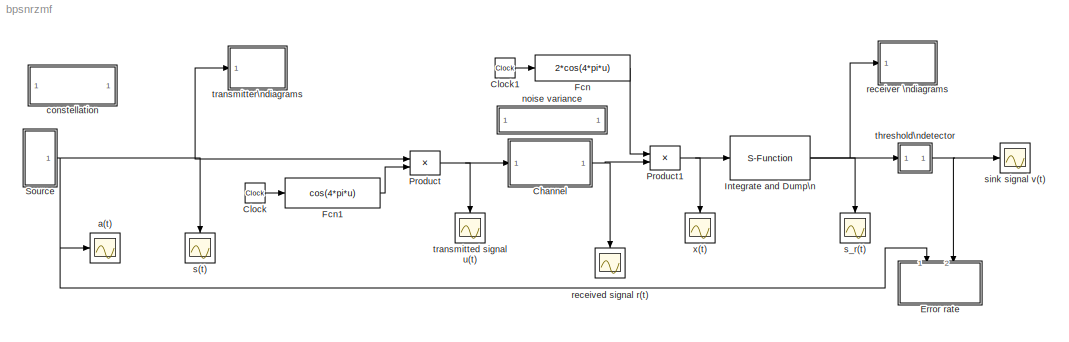
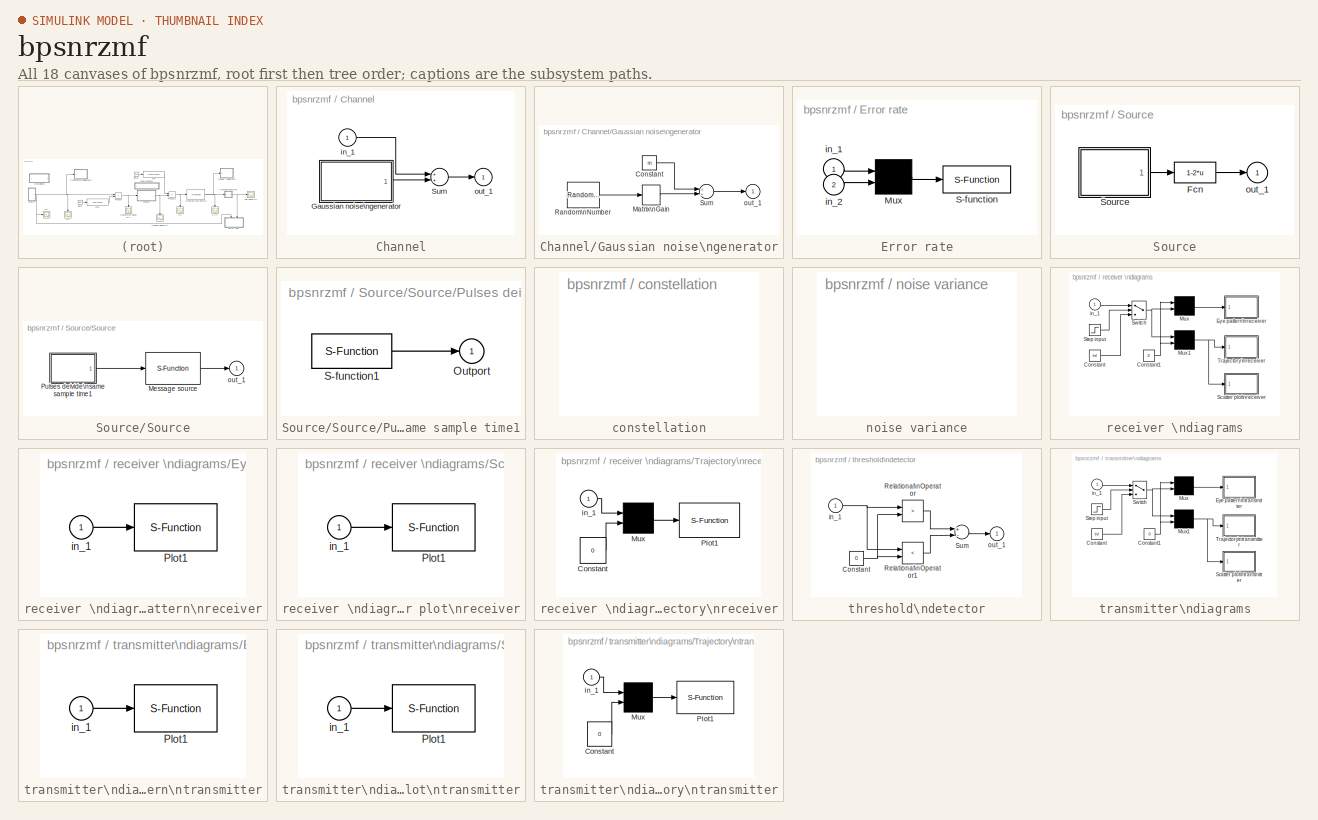
[diagram: thumbnail index - all 18 canvases of the model, root first then tree order]
MODEL bpsnrzmf
KIND model
CONFIG AbsTol = 1e-6
CONFIG FixedStep = auto
CONFIG MaxStep = .01
CONFIG MinStep = 0.000001
CONFIG RelTol = 1e-6
CONFIG Solver = ode45
CONFIG SolverMode = Auto
CONFIG StartTime = 0.0
CONFIG StopTime = 999
BLOCK [SubSystem] Channel
  MaskCallbackString = ||
  MaskDescription = Additive white Gaussian noise channel\nwith fixed mean and variance.
  MaskDisplay = plot(0,0,100,100);\ndisp('AWGN')
  MaskEnableString = on,on,on
  MaskHelp = This block adds white Gaussian noise to the input signal. The mean and the variance can be a scalar or vector with the same length as the input signal.
  MaskIconFrame = on
  MaskIconOpaque = on
  MaskIconRotate = none
  MaskIconUnits = autoscale
  MaskInitialization = [m,variance,s]=gwnoise(m,variance,s);\n
  MaskPromptString = Mean value:|Variance (std^2):|Initial Seed:
  MaskStyleString = edit,edit,edit
  MaskToolTipString = on,on,on
  MaskTunableValueString = on,on,on
  MaskType = AWGN channel, fixed parameter
  MaskValueString = 0|0.00010|12345
  MaskVarAliasString = ,,
  MaskVariables = m=@1;variance=@2;s=@3;
  MaskVisibilityString = on,on,on
  Ports = [1, 1]
  ShowPortLabels = off
  TreatAsAtomicUnit = off
BLOCK [SubSystem] Channel/Gaussian noise\ngenerator
  MaskCallbackString = ||
  MaskDescription = Generate Gaussian distributed noise with\ngiven mean and variance value.
  MaskDisplay = plot(0,0,100,100,x,y);disp('Gaussian')
  MaskEnableString = on,on,on
  MaskHelp = When the mean value and seed are vectors, the output of this block is a vector. The length of the vector is the same as the length of the mean value vector or the length of the seed. When the variance entry is a vector, the variance is a diagonal matrix.
  MaskIconFrame = on
  MaskIconOpaque = on
  MaskIconRotate = none
  MaskIconUnits = autoscale
  MaskInitialization = [m,variance,s]=gwnoise(m,variance,s);[x,y]=srcsicon(3);
  MaskPromptString = Mean value:|Variance (vector or matrix):|Initial seed:
  MaskStyleString = edit,edit,edit
  MaskToolTipString = on,on,on
  MaskTunableValueString = on,on,on
  MaskType = Gaussian noise generator
  MaskValueString = m|variance|s
  MaskVarAliasString = ,,
  MaskVariables = m=@1;variance=@2;s=@3;
  MaskVisibilityString = on,on,on
  Ports = [0, 1]
  ShowPortLabels = off
  TreatAsAtomicUnit = off
BLOCK [Constant] Channel/Gaussian noise\ngenerator/Constant
  Value = m
BLOCK [StateSpace] Channel/Gaussian noise\ngenerator/Matrix\nGain
  A = []
  B = []
  C = []
  D = K
  MaskDescription = Matrix Gain.
  MaskDisplay = disp('K')
  MaskEnableString = on
  MaskHelp = Multiplies input vector by entered matrix to produce output vector (y=Au).
  MaskIconFrame = on
  MaskIconOpaque = on
  MaskIconRotate = none
  MaskIconUnits = autoscale
  MaskInitialization = K = @1;
  MaskPromptString = Gain matrix:
  MaskStyleString = edit
  MaskToolTipString = on
  MaskTunableValueString = on
  MaskType = Matrix Gain
  MaskValueString = variance
  MaskVisibilityString = on
BLOCK [RandomNumber] Channel/Gaussian noise\ngenerator/Random\nNumber
  SampleTime = 0
  Seed = s
BLOCK [Sum] Channel/Gaussian noise\ngenerator/Sum
  Ports = [2, 1]
BLOCK [Outport] Channel/Gaussian noise\ngenerator/out_1
BLOCK [Sum] Channel/Sum
  Ports = [2, 1]
BLOCK [Inport] Channel/in_1
BLOCK [Outport] Channel/out_1
BLOCK [Clock] Clock
  Decimation = 10
BLOCK [Clock] Clock1
  Decimation = 10
BLOCK [SubSystem] Error rate
  CopyFcn = sbiterr([],[],[],'CopyBlock')
  DeleteFcn = sbiterr([],[],[],'DeleteBlock')
  LoadFcn = sbiterr([],[],[],'LoadBlock')
  MaskCallbackString = |||
  MaskDescription = Use the input data from the 1st port as the reference signal to detect the number of errors and error rate of the 2nd signal.
  MaskDisplay = disp('Error\\nmeter')
  MaskEnableString = on,on,on,on
  MaskHelp = The signal from the first port must be a scalar. The second input port can be a vector with a delay to the first port signal. The comparison happens only at the sampling point.
  MaskIconFrame = on
  MaskIconOpaque = on
  MaskIconRotate = none
  MaskIconUnits = autoscale
  MaskInitialization = K=@1;num_lin=@2;TDelay=@3;Sample=@4;
  MaskPromptString = Bit per symbol:|Number of digits on display:|Delay between 1st port and 2nd port:|Sample time (sec):
  MaskStyleString = edit,edit,edit,edit
  MaskToolTipString = on,on,on,on
  MaskTunableValueString = on,on,on,on
  MaskType = Symbol/bit error counter
  MaskValueString = 1|10|1|1
  MaskVarAliasString = ,,,
  MaskVisibilityString = on,on,on,on
  NameChangeFcn = sbiterr([],[],[],'NameChange')
  Ports = [2]
  ShowPortLabels = off
  StartFcn = sbiterr([],[],[],'Start')
  StopFcn = sbiterr([],[],[],'Stop')
  TreatAsAtomicUnit = off
BLOCK [Mux] Error rate/Mux
  Inputs = 2
  Ports = [2, 1]
BLOCK [S-Function] Error rate/S-function
  FunctionName = sbiterr
  Parameters = num_lin, K, TDelay, Sample
  Ports = [1]
BLOCK [Inport] Error rate/in_1
BLOCK [Inport] Error rate/in_2
  Port = 2
BLOCK [Fcn] Fcn
  Expr = 2*cos(4*pi*u)
BLOCK [Fcn] Fcn1
  Expr = cos(4*pi*u)
BLOCK [S-Function] Integrate and Dump\n
  FunctionName = schdint
  MaskCallbackString = ||
  MaskDescription = Reset the state to be zero(s) at the\nscheduled reset sample point.
  MaskDisplay = disp('Scheduled\\nreset-int')
  MaskEnableString = on,on,on
  MaskHelp = This block resets the state(s) to be zero(s) at the reset time points. The reset interval can be a two-element vector with the second element as offset. The computation sample time must be smaller than the reset interval. The block resets the state value to be the remainder of the state divided by the modulo bound when the absolute value of the state is larger than the modulo bound.
  MaskIconFrame = on
  MaskIconOpaque = on
  MaskIconRotate = none
  MaskIconUnits = autoscale
  MaskInitialization = td=@1;ts=@2;limit=@3;
  MaskPromptString = Scheduled reset time interval and offset (sec):|Computation sample time and offset (sec):|Modulo bound:
  MaskStyleString = edit,edit,edit
  MaskToolTipString = on,on,on
  MaskTunableValueString = on,on,on
  MaskType = Scheduled reset integration
  MaskValueString = 1|.01|999
  MaskVarAliasString = ,,
  MaskVisibilityString = on,on,on
  Parameters = td, ts, limit
  Ports = [1, 1]
BLOCK [Product] Product
  Ports = [2, 1]
BLOCK [Product] Product1
  Ports = [2, 1]
BLOCK [SubSystem] Source
  Ports = [0, 1]
  ShowPortLabels = off
  TreatAsAtomicUnit = off
BLOCK [Fcn] Source/Fcn
  Expr = 1-2*u
BLOCK [SubSystem] Source/Source
  MaskCallbackString = |||
  MaskDescription = Read from a workspace variable at\nsampling time point.
  MaskDisplay = plot(0,0,100,100,x,y);disp('Rd wksp')
  MaskEnableString = on,on,on,on
  MaskHelp = This block reads from a workspace variable at a given sample time. The column number is the block output vector length. When the simulation reaches the end of the variable (eof), the block will cyclically output from the first row of the variable or output zeros based on the repeat flag entree.
  MaskIconFrame = on
  MaskIconOpaque = on
  MaskIconRotate = none
  MaskIconUnits = autoscale
  MaskInitialization = var=@1;td=@2;ts=td(1);if (length(td)>=2),off=td(2);else off=0;end;cyc=@3;ini=@4;[x,y]=srcsicon(7);
  MaskPromptString = Variable (column_number=block_output_length):|Data output sample time (sec):|Repeat flag (1: repeat read, 0: output zeros after eof).|Initial output:
  MaskStyleString = edit,edit,edit,edit
  MaskToolTipString = on,on,on,on
  MaskTunableValueString = on,on,on,on
  MaskType = Read from workspace
  MaskValueString = randint(1000,1,2)|1|1|1
  MaskVarAliasString = ,,,
  MaskVisibilityString = on,on,on,on
  Ports = [0, 1]
  ShowPortLabels = off
  TreatAsAtomicUnit = off
BLOCK [S-Function] Source/Source/Message source
  FunctionName = trigwksp
  MaskCallbackString = |||
  MaskDescription = The raising edge of input pulse trigger the block output the next row from the workspace variable.
  MaskDisplay = disp('Triggered\\nread')
  MaskEnableString = on,on,on,on
  MaskHelp = This block reads the data from a workspace variable. The output is refreshed at the raising edge of the input pulse.
  MaskIconFrame = on
  MaskIconOpaque = on
  MaskIconRotate = none
  MaskIconUnits = autoscale
  MaskInitialization = var=@1;thd=@2;cyclFlag=@3;ini=@4;
  MaskPromptString = Read the variable:|Threshold for the input pulse:|Cyclic read variable (1) or amend zeros (0).|Output before first trigger:
  MaskStyleString = edit,edit,edit,edit
  MaskToolTipString = on,on,on,on
  MaskTunableValueString = on,on,on,on
  MaskType = Read from workspace
  MaskValueString = var|.1|cyc|ini
  MaskVarAliasString = ,,,
  MaskVisibilityString = on,on,on,on
  Parameters = var,thd,cyclFlag,ini
  Ports = [1, 1]
BLOCK [SubSystem] Source/Source/Pulses deivide\nsame sample time1
  MaskCallbackString = ||
  MaskDescription = Vector pulses with sample rate of each pulse as Sample_time ./Divider.
  MaskDisplay = disp('Vector\\nPulse')
  MaskEnableString = on,on,on
  MaskHelp = This block generator a vector pulses. The output length is the same as the vector defined in \"Divider\". The ith element of the output has the sample time Sample_time/Divider(i). All elements in \"Divider\" must be integers.
  MaskIconFrame = on
  MaskIconOpaque = on
  MaskIconRotate = none
  MaskIconUnits = autoscale
  MaskInitialization = samp_time=@1;out_divid=@2;offset=@3;
  MaskPromptString = Sample time (scalar, sec):|Divider (integer vector):|Offset (have same dimension as Divider:
  MaskStyleString = edit,edit,edit
  MaskToolTipString = on,on,on
  MaskTunableValueString = on,on,on
  MaskType = Pulse generator
  MaskValueString = ts|1|off
  MaskVarAliasString = ,,
  MaskVisibilityString = on,on,on
  Ports = [0, 1]
  ShowPortLabels = off
  TreatAsAtomicUnit = off
BLOCK [Outport] Source/Source/Pulses deivide\nsame sample time1/Outport
BLOCK [S-Function] Source/Source/Pulses deivide\nsame sample time1/S-function1
  FunctionName = homopuls
  Parameters = samp_time, out_divid, offset
  Ports = [0, 1]
BLOCK [Outport] Source/Source/out_1
BLOCK [Outport] Source/out_1
BLOCK [Scope] a(t)
  DataFormat = Array
  NumInputPorts = 1
  Ports = [1]
  TimeRange = 25.000000
  YMax = 2
  YMin = -2
BLOCK [SubSystem] constellation
  MaskDisplay = disp('Signal Space \\n Constellation')
  MaskIconFrame = on
  MaskIconOpaque = on
  MaskIconRotate = none
  MaskIconUnits = autoscale
  MaskType = constellation
  OpenFcn = cplotpsk(2)
  Ports = []
  ShowPortLabels = off
  TreatAsAtomicUnit = off
BLOCK [SubSystem] noise variance
  MaskDisplay = disp('Noise variance')
  MaskIconFrame = on
  MaskIconOpaque = on
  MaskIconRotate = none
  MaskIconUnits = autoscale
  MaskType = noise
  OpenFcn = setnoise
  Ports = []
  ShowPortLabels = off
  TreatAsAtomicUnit = off
BLOCK [Scope] received signal r(t)
  DataFormat = Array
  NumInputPorts = 1
  Ports = [1]
  TimeRange = 25.000000
  YMax = 2
  YMin = -2
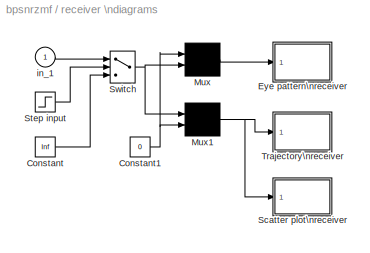
BLOCK [SubSystem] receiver \ndiagrams
  MaskCallbackString = ||
  MaskDescription = Eye pattern, signal space trajectory and scatter plot
  MaskDisplay = plot(0,0,100,100,x,y)
  MaskEnableString = on,on,on
  MaskIconFrame = on
  MaskIconOpaque = on
  MaskIconRotate = none
  MaskIconUnits = autoscale
  MaskInitialization = [x, y] = srcsicon(10);
  MaskPromptString = Plot start time:|Samples per time slot (2*T):|Decision offset :
  MaskStyleString = edit,edit,edit
  MaskToolTipString = on,on,on
  MaskTunableValueString = on,on,on
  MaskType = Diagrams
  MaskValueString = 0|40|0
  MaskVarAliasString = ,,
  MaskVariables = starttime=@1;anzahl=@2;offset=@3;
  MaskVisibilityString = on,on,on
  Ports = [1]
  ShowPortLabels = off
  TreatAsAtomicUnit = off
BLOCK [Constant] receiver \ndiagrams/Constant
  Value = Inf
BLOCK [Constant] receiver \ndiagrams/Constant1
  Value = 0
BLOCK [SubSystem] receiver \ndiagrams/Eye pattern\nreceiver
  CopyFcn = eyesampl([],[],[],'CopyBlock')
  DeleteFcn = eyesampl([],[],[],'DeleteBlock')
  LoadFcn = eyesampl([],[],[],'LoadBlock')
  MaskCallbackString = |||||
  MaskDescription = Produce eye-pattern diagram and/or scatter plot.
  MaskDisplay = plot(0,0,100,100,x,y);
  MaskEnableString = on,on,on,on,on,on
  MaskHelp = This plot opens one, or two plots by assigning the line type parameters. The scatter plot point is selected by the decision point in the first parameter entry. A decision line is drawn in the eye-pattern diagram. The plot is updated at the plot update sample time point.  <repeated x4 — deduplicated; at blocks: Eye pattern\nreceiver, Scatter plot\nreceiver, Eye pattern\ntransmitter, Scatter plot\ntransmitter>
  MaskIconFrame = on
  MaskIconOpaque = on
  MaskIconRotate = none
  MaskIconUnits = autoscale
  MaskInitialization = time_range=@1;boundary=@2;kept_length=@3;eye_line=@4;scatter_line=@5;two_d_line=@6;[x,y]=srcsicon(10);
  MaskPromptString = [Symbol interval, plot offset, decision point offset]:|Lower and upper bound of in-coming signal (1x2 vector):|Number of saved traces:|Line-type for eye-pattern diagram (0 for no plot):|Line-type for scatter plot (0 for no plot):|Plot update sample time:  <repeated x4 — deduplicated; at blocks: Eye pattern\nreceiver, Scatter plot\nreceiver, Eye pattern\ntransmitter, Scatter plot\ntransmitter>
  MaskStyleString = edit,edit,edit,edit,edit,edit
  MaskToolTipString = on,on,on,on,on,on
  MaskTunableValueString = on,on,on,on,on,on
  MaskType = Eye-diagram/scatter plot
  MaskValueString = [2 0 1+offset]|[-1.5 1.5]|0|'w-/r-'|0|2/anzahl
  MaskVarAliasString = ,,,,,
  MaskVisibilityString = on,on,on,on,on,on
  NameChangeFcn = eyesampl([],[],[],'NameChange')
  Ports = [1]
  ShowPortLabels = off
  StartFcn = eyesampl([],[],[],'Start')
  StopFcn = eyesampl([],[],[],'Stop')
  TreatAsAtomicUnit = off
BLOCK [S-Function] receiver \ndiagrams/Eye pattern\nreceiver/Plot1
  FunctionName = eyesampl
  Parameters = time_range, boundary, kept_length, eye_line, scatter_line, two_d_line
  Ports = [1]
BLOCK [Inport] receiver \ndiagrams/Eye pattern\nreceiver/in_1
BLOCK [Mux] receiver \ndiagrams/Mux
  Inputs = 2
  Ports = [2, 1]
BLOCK [Mux] receiver \ndiagrams/Mux1
  Inputs = 2
  Ports = [2, 1]
BLOCK [SubSystem] receiver \ndiagrams/Scatter plot\nreceiver
  CopyFcn = eyesampl([],[],[],'CopyBlock')
  DeleteFcn = eyesampl([],[],[],'DeleteBlock')
  LoadFcn = eyesampl([],[],[],'LoadBlock')
  MaskCallbackString = |||||
  MaskDescription = Produce eye-pattern diagram and/or scatter plot.
  MaskDisplay = plot(0,0,100,100,x,y);
  MaskEnableString = on,on,on,on,on,on
  MaskIconFrame = on
  MaskIconOpaque = on
  MaskIconRotate = none
  MaskIconUnits = autoscale
  MaskInitialization = time_range=@1;boundary=@2;kept_length=@3;eye_line=@4;scatter_line=@5;two_d_line=@6;[x,y]=srcsicon(10);
  MaskStyleString = edit,edit,edit,edit,edit,edit
  MaskToolTipString = on,on,on,on,on,on
  MaskTunableValueString = on,on,on,on,on,on
  MaskType = Eye-diagram/scatter plot
  MaskValueString = [1 .5 .999]|[-1.5 1.5]|0|0|'b.'|[.5 offset]
  MaskVarAliasString = ,,,,,
  MaskVisibilityString = on,on,on,on,on,on
  NameChangeFcn = eyesampl([],[],[],'NameChange')
  Ports = [1]
  ShowPortLabels = off
  StartFcn = eyesampl([],[],[],'Start')
  StopFcn = eyesampl([],[],[],'Stop')
  TreatAsAtomicUnit = off
BLOCK [S-Function] receiver \ndiagrams/Scatter plot\nreceiver/Plot1
  FunctionName = eyesampl
  Parameters = time_range, boundary, kept_length, eye_line, scatter_line, two_d_line
  Ports = [1]
BLOCK [Inport] receiver \ndiagrams/Scatter plot\nreceiver/in_1
BLOCK [Step] receiver \ndiagrams/Step input
  SampleTime = 1
  Time = starttime
BLOCK [Switch] receiver \ndiagrams/Switch
  Threshold = 1
BLOCK [SubSystem] receiver \ndiagrams/Trajectory\nreceiver
  CopyFcn = eyediasi([],[],[],'CopyBlock')
  DeleteFcn = eyediasi([],[],[],'DeleteBlock')
  LoadFcn = eyediasi([],[],[],'LoadBlock')
  MaskCallbackString = |||||
  MaskDescription = Produce eye-pattern diagram/scatter\nplot/x-y plot with the rising edge of the second input as the decision line.
  MaskDisplay = plot(0,0,100,100,x,y,v,w);
  MaskEnableString = on,on,on,on,on,on
  MaskHelp = This plot opens one, two, or three plots by assigning the line type parameters. The scatter plot point is selected by the rising edge of a trigger signal. A decision line is drawn at the rising edge of the trigger signal.
  MaskIconFrame = on
  MaskIconOpaque = on
  MaskIconRotate = none
  MaskIconUnits = autoscale
  MaskInitialization = time_range=@1;boundary=@2;kept_length=@3;eye_line=@4;scatter_line=@5;two_d_line=@6;[x,y]=srcsicon(10);[v,w]=trigicon(0,25,get_param(gcb,'orientation'),2);
  MaskPromptString = Eye-pattern plot time frame:|Lower and upper bound of in-coming signal (1x2 vector):|Number of saved traces:|Line-type for eye-pattern diagram (0 for no plot):|Line-type for scatter plot (0 for no plot):|Line-type for x-y plot (0 for no plot):
  MaskStyleString = edit,edit,edit,edit,edit,edit
  MaskToolTipString = on,on,on,on,on,on
  MaskTunableValueString = on,on,on,on,on,on
  MaskType = Eye-diagram/scatter plot
  MaskValueString = [2 0 1]|[-1.5 1.5]|0|0|0|'g-'
  MaskVarAliasString = ,,,,,
  MaskVisibilityString = on,on,on,on,on,on
  NameChangeFcn = eyediasi([],[],[],'NameChange')
  Ports = [1]
  ShowPortLabels = off
  StartFcn = eyediasi([],[],[],'Start')
  StopFcn = eyediasi([],[],[],'Stop')
  TreatAsAtomicUnit = off
BLOCK [Constant] receiver \ndiagrams/Trajectory\nreceiver/Constant
  Value = 0
BLOCK [Mux] receiver \ndiagrams/Trajectory\nreceiver/Mux
  Inputs = 2
  Ports = [2, 1]
BLOCK [S-Function] receiver \ndiagrams/Trajectory\nreceiver/Plot1
  FunctionName = eyediasi
  Parameters = time_range, boundary, kept_length, eye_line, scatter_line, two_d_line
  Ports = [1]
BLOCK [Inport] receiver \ndiagrams/Trajectory\nreceiver/in_1
BLOCK [Inport] receiver \ndiagrams/in_1
BLOCK [Scope] s(t)
  DataFormat = Array
  NumInputPorts = 1
  Ports = [1]
  TimeRange = 25.000000
  YMax = 2
  YMin = -2
BLOCK [Scope] s_r(t)
  DataFormat = Array
  NumInputPorts = 1
  Ports = [1]
  TimeRange = 25.000000
  YMax = 2
  YMin = -2
BLOCK [Scope] sink signal v(t)
  DataFormat = Array
  NumInputPorts = 1
  Ports = [1]
  TimeRange = 25.000000
  YMax = 2
  YMin = -2
BLOCK [SubSystem] threshold\ndetector
  MaskDescription = y = sign(x)
  MaskDisplay = plot(-50,-50,50,50,[-50,50],[0,0],[0,0],[-50,50],[-40,0],[-30,-30],[0,40],[30,30])
  MaskHelp = Sign Function:<path> = 1 if x > 0<path> = 0 if x = 0<path> = -1 if x < 0
  MaskIconFrame = on
  MaskIconOpaque = on
  MaskIconRotate = none
  MaskIconUnits = autoscale
  MaskType = Sign
  Ports = [1, 1]
  ShowPortLabels = off
  TreatAsAtomicUnit = off
BLOCK [Constant] threshold\ndetector/Constant
  Value = 0
BLOCK [RelationalOperator] threshold\ndetector/Relational\nOperator
  Operator = >
BLOCK [RelationalOperator] threshold\ndetector/Relational\nOperator1
  Operator = <
BLOCK [Sum] threshold\ndetector/Sum
  Inputs = +-
  Ports = [2, 1]
BLOCK [Inport] threshold\ndetector/in_1
BLOCK [Outport] threshold\ndetector/out_1
BLOCK [Scope] transmitted signal u(t)
  DataFormat = Array
  NumInputPorts = 1
  Ports = [1]
  SaveName = ScopeData1
  TimeRange = 25.000000
  YMax = 2
  YMin = -2
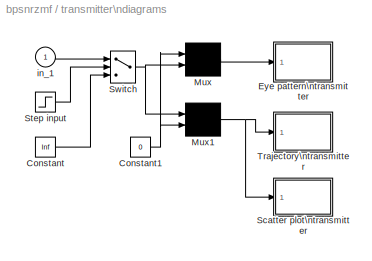
BLOCK [SubSystem] transmitter\ndiagrams
  MaskCallbackString = ||
  MaskDescription = Eye pattern, signal space trajectory and scatter plot.
  MaskDisplay = plot(0,0,100,100,x,y)
  MaskEnableString = on,on,on
  MaskIconFrame = on
  MaskIconOpaque = on
  MaskIconRotate = none
  MaskIconUnits = autoscale
  MaskInitialization = [x, y] = srcsicon(10);
  MaskPromptString = Plot start time:|Samples per time slot (2*T):|Decision offset:
  MaskStyleString = edit,edit,edit
  MaskToolTipString = on,on,on
  MaskTunableValueString = on,on,on
  MaskType = Diagrams
  MaskValueString = 0|40|0
  MaskVarAliasString = ,,
  MaskVariables = starttime=@1;anzahl=@2;offset=@3;
  MaskVisibilityString = on,on,on
  Ports = [1]
  ShowPortLabels = off
  TreatAsAtomicUnit = off
BLOCK [Constant] transmitter\ndiagrams/Constant
  Value = Inf
BLOCK [Constant] transmitter\ndiagrams/Constant1
  Value = 0
BLOCK [SubSystem] transmitter\ndiagrams/Eye pattern\ntransmitter
  CopyFcn = eyesampl([],[],[],'CopyBlock')
  DeleteFcn = eyesampl([],[],[],'DeleteBlock')
  LoadFcn = eyesampl([],[],[],'LoadBlock')
  MaskCallbackString = |||||
  MaskDescription = Produce eye-pattern diagram and/or scatter plot.
  MaskDisplay = plot(0,0,100,100,x,y);
  MaskEnableString = on,on,on,on,on,on
  MaskIconFrame = on
  MaskIconOpaque = on
  MaskIconRotate = none
  MaskIconUnits = autoscale
  MaskInitialization = time_range=@1;boundary=@2;kept_length=@3;eye_line=@4;scatter_line=@5;two_d_line=@6;[x,y]=srcsicon(10);
  MaskStyleString = edit,edit,edit,edit,edit,edit
  MaskToolTipString = on,on,on,on,on,on
  MaskTunableValueString = on,on,on,on,on,on
  MaskType = Eye-diagram/scatter plot
  MaskValueString = [2 0 1+offset]|[-1.5 1.5]|0|'w-/r-'|0|2/anzahl
  MaskVarAliasString = ,,,,,
  MaskVisibilityString = on,on,on,on,on,on
  NameChangeFcn = eyesampl([],[],[],'NameChange')
  Ports = [1]
  ShowPortLabels = off
  StartFcn = eyesampl([],[],[],'Start')
  StopFcn = eyesampl([],[],[],'Stop')
  TreatAsAtomicUnit = off
BLOCK [S-Function] transmitter\ndiagrams/Eye pattern\ntransmitter/Plot1
  FunctionName = eyesampl
  Parameters = time_range, boundary, kept_length, eye_line, scatter_line, two_d_line
  Ports = [1]
BLOCK [Inport] transmitter\ndiagrams/Eye pattern\ntransmitter/in_1
BLOCK [Mux] transmitter\ndiagrams/Mux
  Inputs = 2
  Ports = [2, 1]
BLOCK [Mux] transmitter\ndiagrams/Mux1
  Inputs = 2
  Ports = [2, 1]
BLOCK [SubSystem] transmitter\ndiagrams/Scatter plot\ntransmitter
  CopyFcn = eyesampl([],[],[],'CopyBlock')
  DeleteFcn = eyesampl([],[],[],'DeleteBlock')
  LoadFcn = eyesampl([],[],[],'LoadBlock')
  MaskCallbackString = |||||
  MaskDescription = Produce eye-pattern diagram and/or scatter plot.
  MaskDisplay = plot(0,0,100,100,x,y);
  MaskEnableString = on,on,on,on,on,on
  MaskIconFrame = on
  MaskIconOpaque = on
  MaskIconRotate = none
  MaskIconUnits = autoscale
  MaskInitialization = time_range=@1;boundary=@2;kept_length=@3;eye_line=@4;scatter_line=@5;two_d_line=@6;[x,y]=srcsicon(10);
  MaskStyleString = edit,edit,edit,edit,edit,edit
  MaskToolTipString = on,on,on,on,on,on
  MaskTunableValueString = on,on,on,on,on,on
  MaskType = Eye-diagram/scatter plot
  MaskValueString = [1 .5 .999]|[-1.5 1.5]|0|0|'b.'|[.5 offset]
  MaskVarAliasString = ,,,,,
  MaskVisibilityString = on,on,on,on,on,on
  NameChangeFcn = eyesampl([],[],[],'NameChange')
  Ports = [1]
  ShowPortLabels = off
  StartFcn = eyesampl([],[],[],'Start')
  StopFcn = eyesampl([],[],[],'Stop')
  TreatAsAtomicUnit = off
BLOCK [S-Function] transmitter\ndiagrams/Scatter plot\ntransmitter/Plot1
  FunctionName = eyesampl
  Parameters = time_range, boundary, kept_length, eye_line, scatter_line, two_d_line
  Ports = [1]
BLOCK [Inport] transmitter\ndiagrams/Scatter plot\ntransmitter/in_1
BLOCK [Step] transmitter\ndiagrams/Step input
  SampleTime = 1
  Time = starttime
BLOCK [Switch] transmitter\ndiagrams/Switch
  Threshold = 1
BLOCK [SubSystem] transmitter\ndiagrams/Trajectory\ntransmitter
  CopyFcn = eyediasi([],[],[],'CopyBlock')
  DeleteFcn = eyediasi([],[],[],'DeleteBlock')
  LoadFcn = eyediasi([],[],[],'LoadBlock')
  MaskCallbackString = |||||
  MaskDescription = Produce eye-pattern diagram/scatter\nplot/x-y plot with the rising edge of the second input as the decision line.
  MaskDisplay = plot(0,0,100,100,x,y,v,w);
  MaskEnableString = on,on,on,on,on,on
  MaskHelp = This plot opens one, two, or three plots by assigning the line type parameters. The scatter plot point is selected by the rising edge of a trigger signal. A decision line is drawn at the rising edge of the trigger signal.
  MaskIconFrame = on
  MaskIconOpaque = on
  MaskIconRotate = none
  MaskIconUnits = autoscale
  MaskInitialization = time_range=@1;boundary=@2;kept_length=@3;eye_line=@4;scatter_line=@5;two_d_line=@6;[x,y]=srcsicon(10);[v,w]=trigicon(0,25,get_param(gcb,'orientation'),2);
  MaskPromptString = Eye-pattern plot time frame:|Lower and upper bound of in-coming signal (1x2 vector):|Number of saved traces:|Line-type for eye-pattern diagram (0 for no plot):|Line-type for scatter plot (0 for no plot):|Line-type for x-y plot (0 for no plot):
  MaskStyleString = edit,edit,edit,edit,edit,edit
  MaskToolTipString = on,on,on,on,on,on
  MaskTunableValueString = on,on,on,on,on,on
  MaskType = Eye-diagram/scatter plot
  MaskValueString = [2 0 1]|[-1.5 1.5]|0|0|0|'g-'
  MaskVarAliasString = ,,,,,
  MaskVisibilityString = on,on,on,on,on,on
  NameChangeFcn = eyediasi([],[],[],'NameChange')
  Ports = [1]
  ShowPortLabels = off
  StartFcn = eyediasi([],[],[],'Start')
  StopFcn = eyediasi([],[],[],'Stop')
  TreatAsAtomicUnit = off
BLOCK [Constant] transmitter\ndiagrams/Trajectory\ntransmitter/Constant
  Value = 0
BLOCK [Mux] transmitter\ndiagrams/Trajectory\ntransmitter/Mux
  Inputs = 2
  Ports = [2, 1]
BLOCK [S-Function] transmitter\ndiagrams/Trajectory\ntransmitter/Plot1
  FunctionName = eyediasi
  Parameters = time_range, boundary, kept_length, eye_line, scatter_line, two_d_line
  Ports = [1]
BLOCK [Inport] transmitter\ndiagrams/Trajectory\ntransmitter/in_1
BLOCK [Inport] transmitter\ndiagrams/in_1
BLOCK [Scope] x(t)
  DataFormat = Array
  NumInputPorts = 1
  Ports = [1]
  TimeRange = 25.000000
  YMax = 2
  YMin = -2
LINE Channel/Gaussian noise\ngenerator/Constant:1 -> Channel/Gaussian noise\ngenerator/Sum:1
LINE Channel/Gaussian noise\ngenerator/Matrix\nGain:1 -> Channel/Gaussian noise\ngenerator/Sum:2
LINE Channel/Gaussian noise\ngenerator/Random\nNumber:1 -> Channel/Gaussian noise\ngenerator/Matrix\nGain:1
LINE Channel/Gaussian noise\ngenerator/Sum:1 -> Channel/Gaussian noise\ngenerator/out_1:1
LINE Channel/Gaussian noise\ngenerator:1 -> Channel/Sum:2
LINE Channel/Sum:1 -> Channel/out_1:1
LINE Channel/in_1:1 -> Channel/Sum:1
NET Channel:1 -> Product1:2, received signal r(t):1
LINE Clock1:1 -> Fcn:1
LINE Clock:1 -> Fcn1:1
LINE Error rate/Mux:1 -> Error rate/S-function:1
LINE Error rate/in_1:1 -> Error rate/Mux:1
LINE Error rate/in_2:1 -> Error rate/Mux:2
LINE Fcn1:1 -> Product:2
LINE Fcn:1 -> Product1:1
NET Integrate and Dump\n:1 -> receiver \ndiagrams:1, s_r(t):1, threshold\ndetector:1
NET Product1:1 -> Integrate and Dump\n:1, x(t):1
NET Product:1 -> Channel:1, transmitted signal u(t):1
LINE Source/Fcn:1 -> Source/out_1:1
LINE Source/Source/Message source:1 -> Source/Source/out_1:1
LINE Source/Source/Pulses deivide\nsame sample time1/S-function1:1 -> Source/Source/Pulses deivide\nsame sample time1/Outport:1
LINE Source/Source/Pulses deivide\nsame sample time1:1 -> Source/Source/Message source:1
LINE Source/Source:1 -> Source/Fcn:1
NET Source:1 -> Error rate:1, Product:1, a(t):1, s(t):1, transmitter\ndiagrams:1
NET receiver \ndiagrams/Constant1:1 -> receiver \ndiagrams/Mux1:2, receiver \ndiagrams/Mux:1
LINE receiver \ndiagrams/Constant:1 -> receiver \ndiagrams/Switch:3
LINE receiver \ndiagrams/Eye pattern\nreceiver/in_1:1 -> receiver \ndiagrams/Eye pattern\nreceiver/Plot1:1
NET receiver \ndiagrams/Mux1:1 -> receiver \ndiagrams/Scatter plot\nreceiver:1, receiver \ndiagrams/Trajectory\nreceiver:1
LINE receiver \ndiagrams/Mux:1 -> receiver \ndiagrams/Eye pattern\nreceiver:1
LINE receiver \ndiagrams/Scatter plot\nreceiver/in_1:1 -> receiver \ndiagrams/Scatter plot\nreceiver/Plot1:1
LINE receiver \ndiagrams/Step input:1 -> receiver \ndiagrams/Switch:2
NET receiver \ndiagrams/Switch:1 -> receiver \ndiagrams/Mux1:1, receiver \ndiagrams/Mux:2
LINE receiver \ndiagrams/Trajectory\nreceiver/Constant:1 -> receiver \ndiagrams/Trajectory\nreceiver/Mux:2
LINE receiver \ndiagrams/Trajectory\nreceiver/Mux:1 -> receiver \ndiagrams/Trajectory\nreceiver/Plot1:1
LINE receiver \ndiagrams/Trajectory\nreceiver/in_1:1 -> receiver \ndiagrams/Trajectory\nreceiver/Mux:1
LINE receiver \ndiagrams/in_1:1 -> receiver \ndiagrams/Switch:1
NET threshold\ndetector/Constant:1 -> threshold\ndetector/Relational\nOperator1:2, threshold\ndetector/Relational\nOperator:2
LINE threshold\ndetector/Relational\nOperator1:1 -> threshold\ndetector/Sum:2
LINE threshold\ndetector/Relational\nOperator:1 -> threshold\ndetector/Sum:1
LINE threshold\ndetector/Sum:1 -> threshold\ndetector/out_1:1
NET threshold\ndetector/in_1:1 -> threshold\ndetector/Relational\nOperator1:1, threshold\ndetector/Relational\nOperator:1
NET threshold\ndetector:1 -> Error rate:2, sink signal v(t):1
NET transmitter\ndiagrams/Constant1:1 -> transmitter\ndiagrams/Mux1:2, transmitter\ndiagrams/Mux:1
LINE transmitter\ndiagrams/Constant:1 -> transmitter\ndiagrams/Switch:3
LINE transmitter\ndiagrams/Eye pattern\ntransmitter/in_1:1 -> transmitter\ndiagrams/Eye pattern\ntransmitter/Plot1:1
NET transmitter\ndiagrams/Mux1:1 -> transmitter\ndiagrams/Scatter plot\ntransmitter:1, transmitter\ndiagrams/Trajectory\ntransmitter:1
LINE transmitter\ndiagrams/Mux:1 -> transmitter\ndiagrams/Eye pattern\ntransmitter:1
LINE transmitter\ndiagrams/Scatter plot\ntransmitter/in_1:1 -> transmitter\ndiagrams/Scatter plot\ntransmitter/Plot1:1
LINE transmitter\ndiagrams/Step input:1 -> transmitter\ndiagrams/Switch:2
NET transmitter\ndiagrams/Switch:1 -> transmitter\ndiagrams/Mux1:1, transmitter\ndiagrams/Mux:2
LINE transmitter\ndiagrams/Trajectory\ntransmitter/Constant:1 -> transmitter\ndiagrams/Trajectory\ntransmitter/Mux:2
LINE transmitter\ndiagrams/Trajectory\ntransmitter/Mux:1 -> transmitter\ndiagrams/Trajectory\ntransmitter/Plot1:1
LINE transmitter\ndiagrams/Trajectory\ntransmitter/in_1:1 -> transmitter\ndiagrams/Trajectory\ntransmitter/Mux:1
LINE transmitter\ndiagrams/in_1:1 -> transmitter\ndiagrams/Switch:1
note: NET lines group one-source signal fan-out (src -> all destinations, sorted); 1:1 wires keep LINE
note: 3 file-system paths scrubbed to <path> (not preserved elsewhere — flat text is the only slx artifact)
